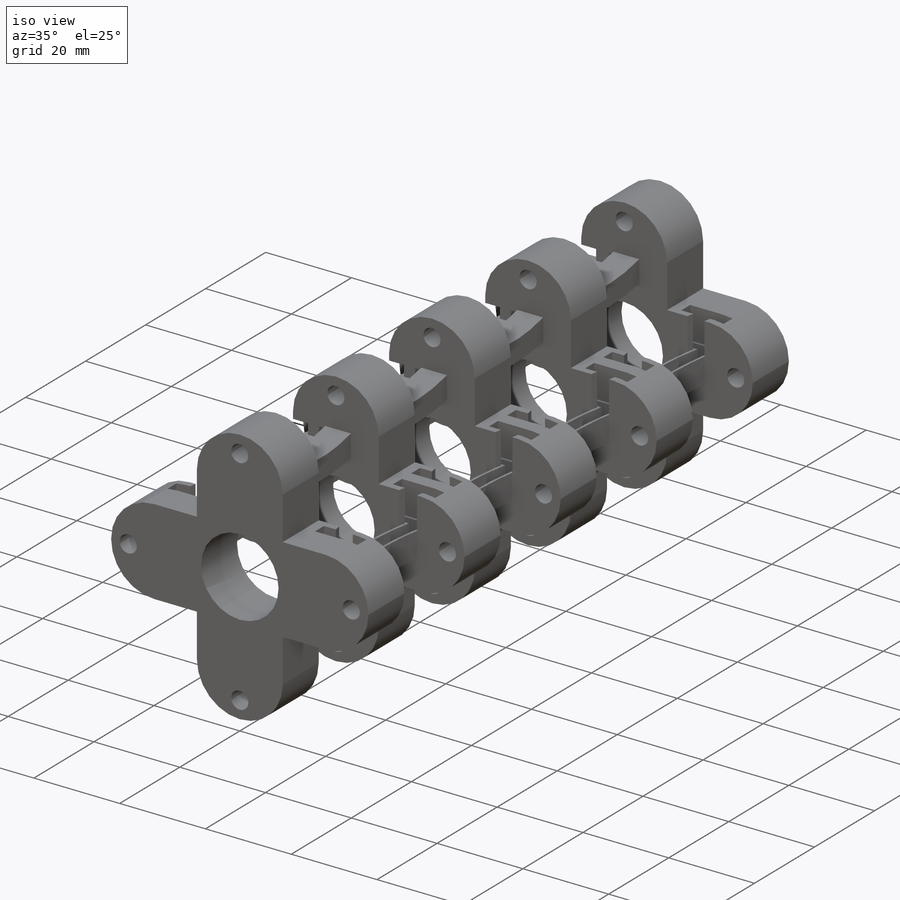
[diagram: iso view]
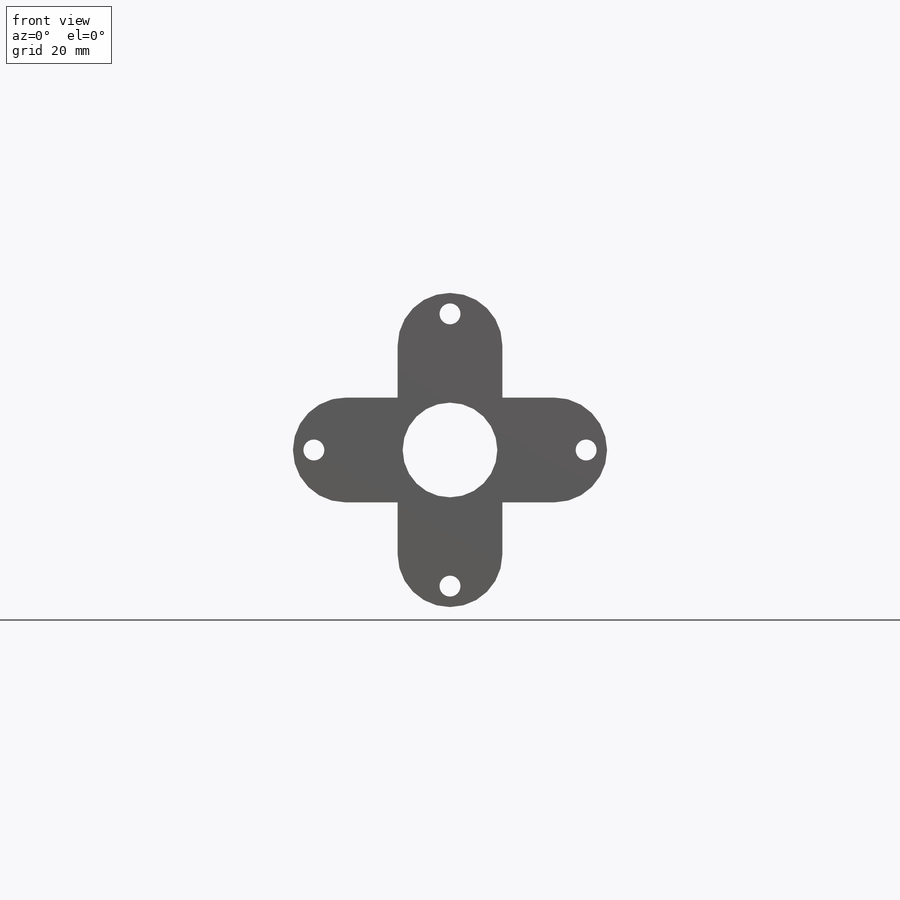
[diagram: front view]
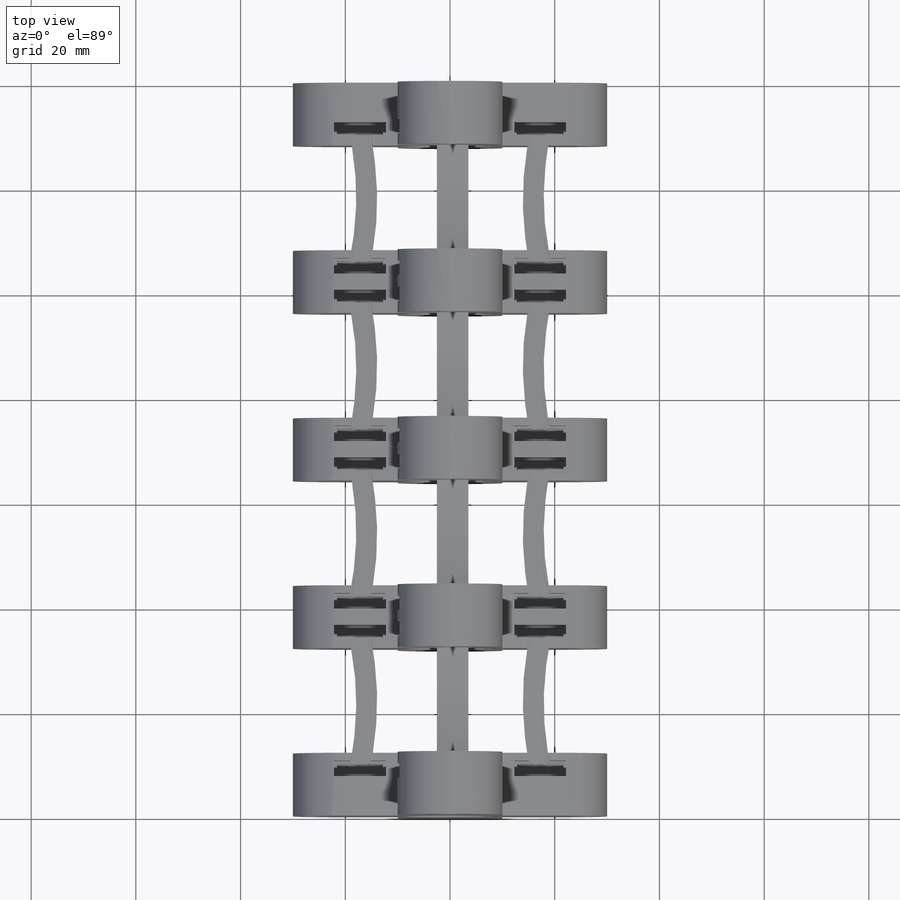
[diagram: top view]
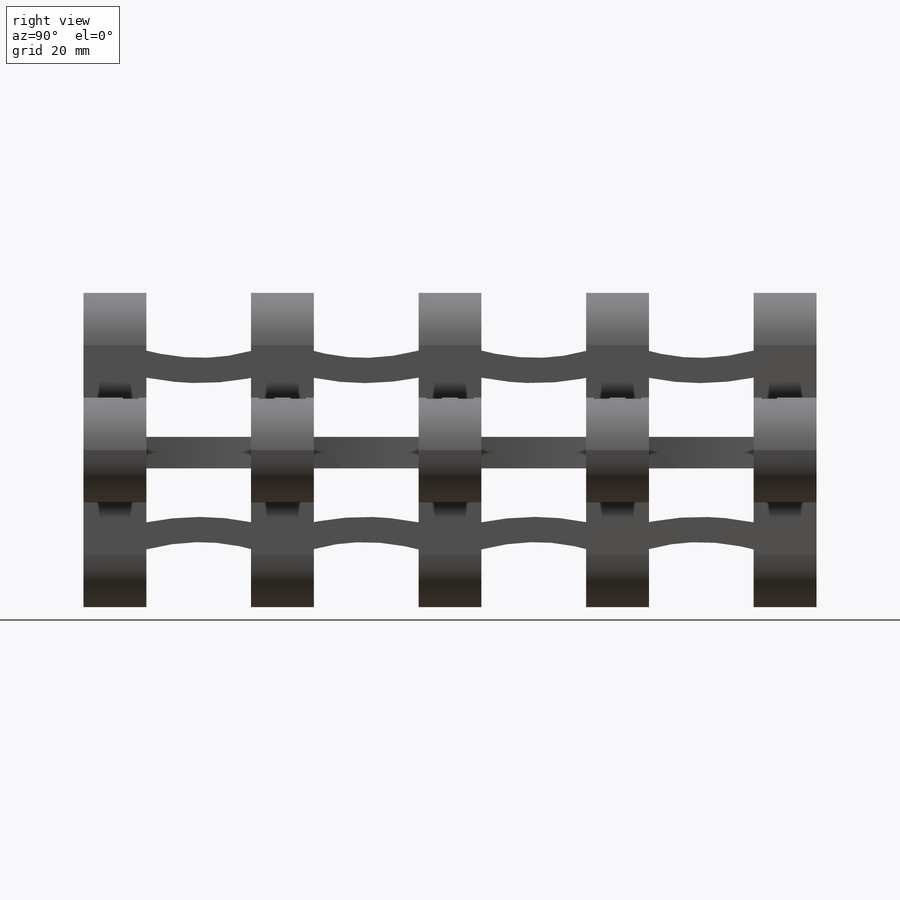
[diagram: right view]
SOLIDWORKS PART (.sldprt)
format: sldprt  version: not decoded by parser v0  size: 1,598,464 bytes
history: native  units: mm
features: sketch x13, plane x10, extrude x8, cut_extrude x4, fillet x3, material x1 (+12 scaffold rows collapsed)
feature tree (51):
  scaffold x12  (default folders/planes/origin — collapsed)
  material  "Material <not specified>"
  sketch  "Sketch1"  dims[c1.D5=~2.531391mm c1.D1=20.0mm c1.D2=60.0mm c1.D3=20.0mm c1.D4=60.0mm c2.D5=16.0mm]
  extrude  "Boss-Extrude1"  Depth=12mm
  plane  "Plane1"  Offset=20mm
  sketch  "Sketch2"  dims[D5=~3.10473mm D1=20.0mm D2=60.0mm D3=20.0mm D4=60.0mm]
  extrude  "Boss-Extrude2"  Depth=12mm
  plane  "Plane2"  Offset=20mm
  sketch  "Sketch3"  dims[D5=~3.10473mm D1=20.0mm D2=60.0mm D3=20.0mm D4=60.0mm]
  extrude  "Boss-Extrude3"  Depth=12mm
  plane  "Plane3"  Offset=20mm
  sketch  "Sketch4"  dims[D5=~3.10473mm D1=20.0mm D2=60.0mm D3=20.0mm D4=60.0mm]
  extrude  "Boss-Extrude4"  Depth=12mm
  plane  "Plane4"  Offset=20mm
  sketch  "Sketch5"  dims[D5=~3.10473mm D1=20.0mm D2=60.0mm D3=20.0mm D4=60.0mm]
  extrude  "Boss-Extrude5"  Depth=12mm
  plane  "Plane5"
  sketch  "Sketch6"  dims[D1=6.0mm D19=6.5mm D5=0.5mm D6=1.0mm D7=5.0mm]
  cut_extrude  "Cut-Extrude1"  [1 undecoded]
  sketch  "Sketch6<2>"  dims[D19=6.5mm]
  cut_extrude  "Cut-Extrude2"  [1 undecoded]
  sketch  "Sketch1<4>"
  plane  "Plane6"
  sketch  "Sketch7"
  cut_extrude  "Cut-Extrude3"  Depth=13.5mm
  plane  "Plane10"
  sketch  "Sketch10"
  extrude  "Boss-Extrude7"  Depth=1mm
  plane  "Plane12"
  sketch  "Sketch12"
  extrude  "Extrude-Thin3"  Depth=5mm
  plane  "Plane16"
  sketch  "Sketch15"
  extrude  "Boss-Extrude8"  Depth=1mm
  fillet  "Fillet1"  Radius=10mm
  fillet  "Fillet2"  Radius=10mm
  fillet  "Fillet3"  Radius=10mm
  plane  "Plane17"
  sketch  "Sketch16"
  cut_extrude  "Cut-Extrude4"  [1 undecoded]
decode coverage: 19 of 28 modeling features carry decoded parameters
note: ~ marks probable driven/reference dimensions
note: 3 parameter values undecoded
summary: no parameter record found for 3 features
note: suppression state not decoded; provenance and decode notes live in map.json
